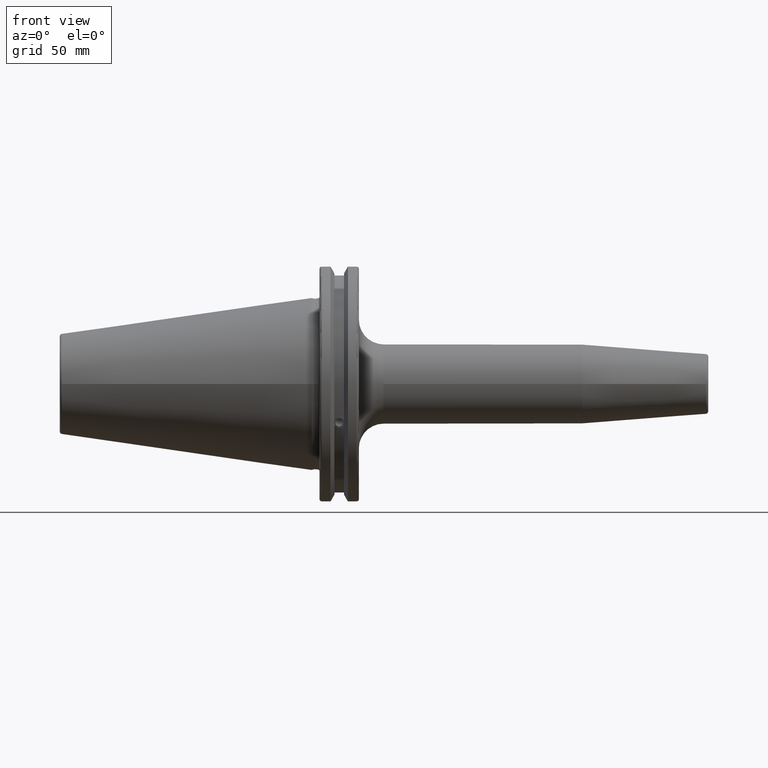
[diagram: clean part render]
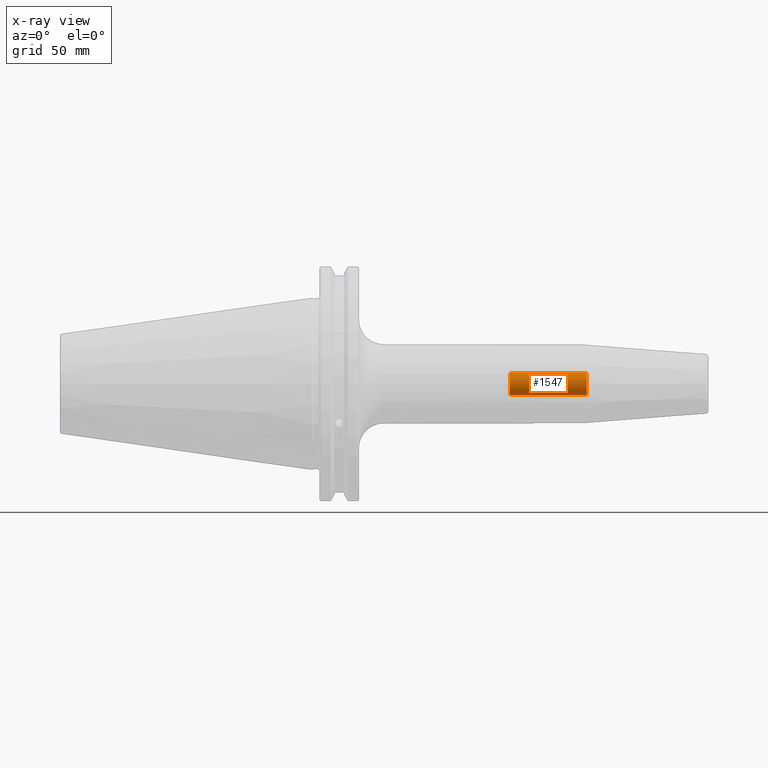
[diagram: x-ray — body ghosted, one internal face saturated and labeled with its STEP entity id]
A machine part, front view, then the same camera in x-ray: the body is ghosted and one INTERNAL B-rep face — a face not visible from any outside direction — is saturated and labeled: STEP entity #1547.
In plain terms, the highlighted cylindrical surface (bore or boss wall) has radius 4.4587 mm, axis along (1, 0, 0).
Its self-contained STEP definition (entity closure, byte-faithful):
#102=LINE('',#2361,#200);
#200=VECTOR('',#1913,4.458734);
#285=CYLINDRICAL_SURFACE('',#1682,4.458734);
#386=FACE_OUTER_BOUND('',#482,.T.);
#482=EDGE_LOOP('',(#1115,#1116,#1117,#1118,#1119));
#598=CIRCLE('',#1683,4.458734);
#599=CIRCLE('',#1684,4.458734);
#600=CIRCLE('',#1685,4.458734);
#689=VERTEX_POINT('',#2358);
#690=VERTEX_POINT('',#2360);
#691=VERTEX_POINT('',#2362);
#855=EDGE_CURVE('',#689,#689,#598,.T.);
#856=EDGE_CURVE('',#689,#690,#102,.T.);
#857=EDGE_CURVE('',#691,#690,#599,.T.);
#858=EDGE_CURVE('',#690,#691,#600,.T.);
#1115=ORIENTED_EDGE('',*,*,#855,.F.);
#1116=ORIENTED_EDGE('',*,*,#856,.T.);
#1117=ORIENTED_EDGE('',*,*,#857,.F.);
#1118=ORIENTED_EDGE('',*,*,#858,.F.);
#1119=ORIENTED_EDGE('',*,*,#856,.F.);
#1547=ADVANCED_FACE('',(#386),#285,.F.);
#1682=AXIS2_PLACEMENT_3D('',#2357,#1909,#1910);
#1683=AXIS2_PLACEMENT_3D('',#2359,#1911,#1912);
#1684=AXIS2_PLACEMENT_3D('',#2363,#1914,#1915);
#1685=AXIS2_PLACEMENT_3D('',#2364,#1916,#1917);
#1909=DIRECTION('center_axis',(1.,0.,0.));
#1910=DIRECTION('ref_axis',(0.,0.,-1.));
#1911=DIRECTION('center_axis',(-1.,0.,0.));
#1912=DIRECTION('ref_axis',(0.,0.,-1.));
#1913=DIRECTION('',(-1.,0.,0.));
#1914=DIRECTION('center_axis',(1.,0.,0.));
#1915=DIRECTION('ref_axis',(0.,0.,-1.));
#1916=DIRECTION('center_axis',(1.,0.,0.));
#1917=DIRECTION('ref_axis',(0.,0.,-1.));
#2357=CARTESIAN_POINT('Origin',(-184.108147153315,0.,0.));
#2358=CARTESIAN_POINT('',(111.,-5.46037432134947E-16,4.458734));
#2359=CARTESIAN_POINT('Origin',(111.,0.,0.));
#2360=CARTESIAN_POINT('',(79.9269466618737,-5.46037432134947E-16,4.458734));
#2361=CARTESIAN_POINT('',(-184.108147153315,-5.46037432134947E-16,4.458734));
#2362=CARTESIAN_POINT('',(79.9269466618737,-5.46037432134947E-16,-4.45873399999999));
#2363=CARTESIAN_POINT('Origin',(79.9269466618737,0.,0.));
#2364=CARTESIAN_POINT('Origin',(79.9269466618737,0.,0.));